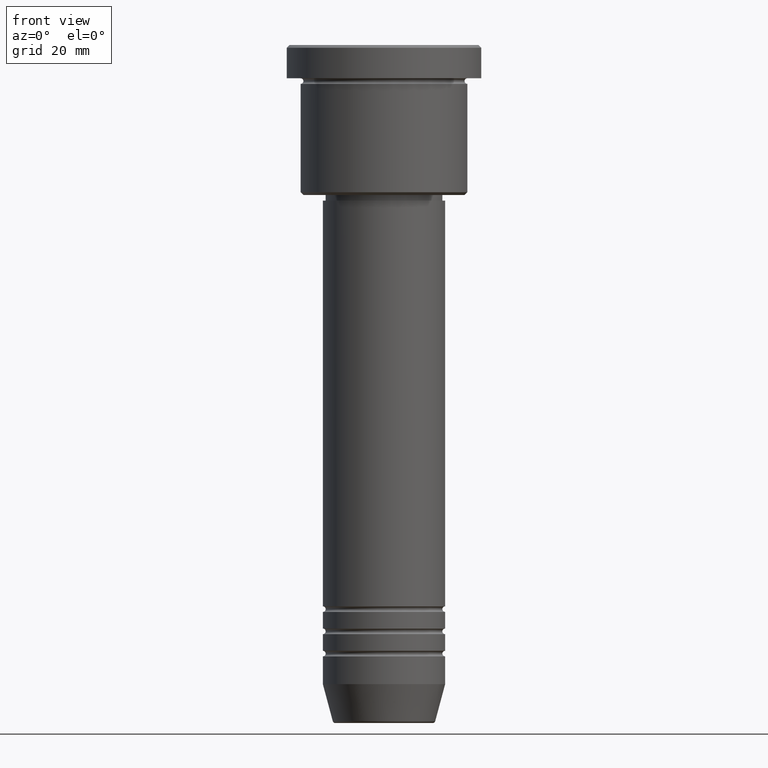
[diagram: clean part render]
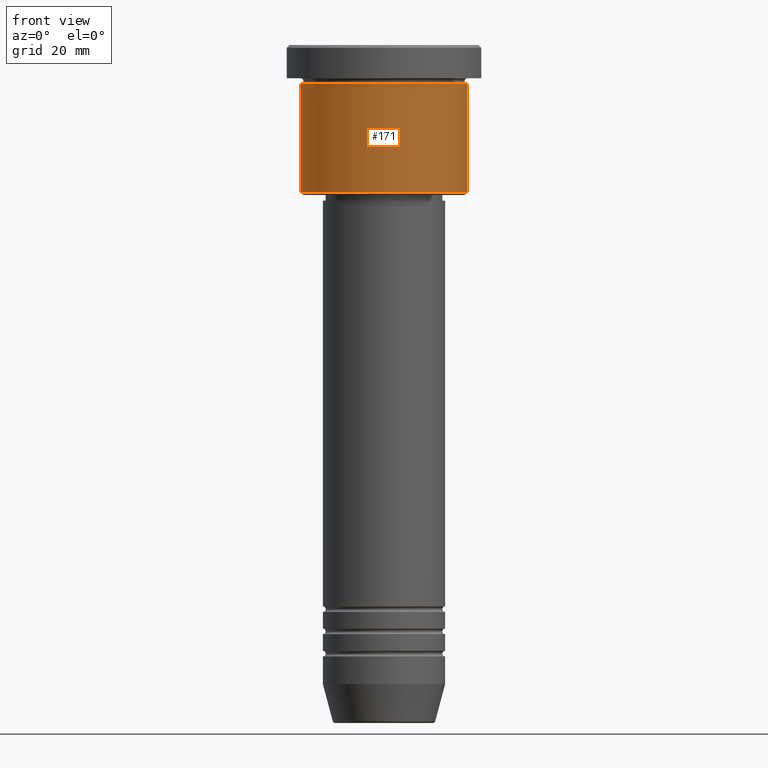
[diagram: same view with one face highlighted and labeled with its STEP entity id]
A machine part, front view. The second image highlights one B-rep face of the part: STEP entity #171.
In plain terms, the highlighted cylindrical surface (partial cylindrical patch) has radius 15 mm, axis along (-0, -0, 1).
Its self-contained STEP definition (entity closure, byte-faithful):
#41 = DIRECTION ( 'NONE',  ( -0.000000000000000000, -0.000000000000000000, 1.000000000000000000 ) ) ;
#46 = CARTESIAN_POINT ( 'NONE',  ( 0.000000000000000000, 0.000000000000000000, 0.000000000000000000 ) ) ;
#60 = DIRECTION ( 'NONE',  ( 1.000000000000000000, 0.000000000000000000, 0.000000000000000000 ) ) ;
#63 = CARTESIAN_POINT ( 'NONE',  ( 0.000000000000000000, 0.000000000000000000, -26.49999999999998224 ) ) ;
#68 = CARTESIAN_POINT ( 'NONE',  ( 15.00000000000000000, 0.000000000000000000, -26.49999999999998224 ) ) ;
#113 = EDGE_CURVE ( 'NONE', #450, #899, #848, .T. ) ;
#145 = LINE ( 'NONE', #428, #984 ) ;
#149 = CYLINDRICAL_SURFACE ( 'NONE', #325, 15.00000000000000000 ) ;
#171 = ADVANCED_FACE ( 'NONE', ( #868 ), #149, .T. ) ;
#222 = DIRECTION ( 'NONE',  ( -1.000000000000000000, 0.000000000000000000, 0.000000000000000000 ) ) ;
#226 = CARTESIAN_POINT ( 'NONE',  ( 15.00000000000000000, 0.000000000000000000, 0.000000000000000000 ) ) ;
#238 = ORIENTED_EDGE ( 'NONE', *, *, #756, .F. ) ;
#304 = ORIENTED_EDGE ( 'NONE', *, *, #850, .T. ) ;
#325 = AXIS2_PLACEMENT_3D ( 'NONE', #46, #616, #800 ) ;
#428 = CARTESIAN_POINT ( 'NONE',  ( -15.00000000000000000, 1.836970198721029589E-15, 0.000000000000000000 ) ) ;
#450 = VERTEX_POINT ( 'NONE', #68 ) ;
#467 = EDGE_CURVE ( 'NONE', #888, #899, #905, .T. ) ;
#503 = DIRECTION ( 'NONE',  ( -0.000000000000000000, -0.000000000000000000, 1.000000000000000000 ) ) ;
#541 = ORIENTED_EDGE ( 'NONE', *, *, #467, .F. ) ;
#616 = DIRECTION ( 'NONE',  ( -0.000000000000000000, -0.000000000000000000, 1.000000000000000000 ) ) ;
#641 = VERTEX_POINT ( 'NONE', #784 ) ;
#649 = AXIS2_PLACEMENT_3D ( 'NONE', #896, #503, #60 ) ;
#661 = EDGE_LOOP ( 'NONE', ( #238, #304, #878, #541 ) ) ;
#668 = CARTESIAN_POINT ( 'NONE',  ( -15.00000000000000000, 1.836970198721029589E-15, -6.999999999999995559 ) ) ;
#756 = EDGE_CURVE ( 'NONE', #641, #888, #145, .T. ) ;
#784 = CARTESIAN_POINT ( 'NONE',  ( -15.00000000000000000, 1.836970198721029589E-15, -26.49999999999998224 ) ) ;
#800 = DIRECTION ( 'NONE',  ( 1.000000000000000000, 0.000000000000000000, 0.000000000000000000 ) ) ;
#848 = LINE ( 'NONE', #226, #1166 ) ;
#850 = EDGE_CURVE ( 'NONE', #641, #450, #1135, .T. ) ;
#868 = FACE_OUTER_BOUND ( 'NONE', #661, .T. ) ;
#878 = ORIENTED_EDGE ( 'NONE', *, *, #113, .T. ) ;
#888 = VERTEX_POINT ( 'NONE', #668 ) ;
#896 = CARTESIAN_POINT ( 'NONE',  ( 0.000000000000000000, 0.000000000000000000, -6.999999999999995559 ) ) ;
#899 = VERTEX_POINT ( 'NONE', #1037 ) ;
#905 = CIRCLE ( 'NONE', #649, 15.00000000000000000 ) ;
#984 = VECTOR ( 'NONE', #1141, 1000.000000000000000 ) ;
#1020 = AXIS2_PLACEMENT_3D ( 'NONE', #63, #41, #222 ) ;
#1037 = CARTESIAN_POINT ( 'NONE',  ( 15.00000000000000000, 0.000000000000000000, -6.999999999999995559 ) ) ;
#1075 = DIRECTION ( 'NONE',  ( -0.000000000000000000, -0.000000000000000000, 1.000000000000000000 ) ) ;
#1135 = CIRCLE ( 'NONE', #1020, 15.00000000000000000 ) ;
#1141 = DIRECTION ( 'NONE',  ( -0.000000000000000000, -0.000000000000000000, 1.000000000000000000 ) ) ;
#1166 = VECTOR ( 'NONE', #1075, 1000.000000000000000 ) ;